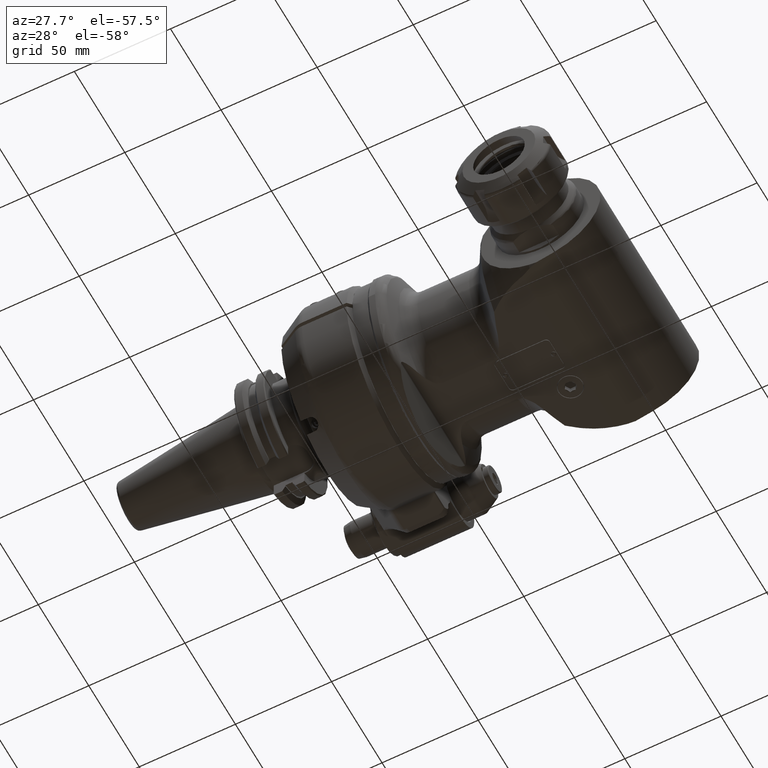
[diagram: clean part render]
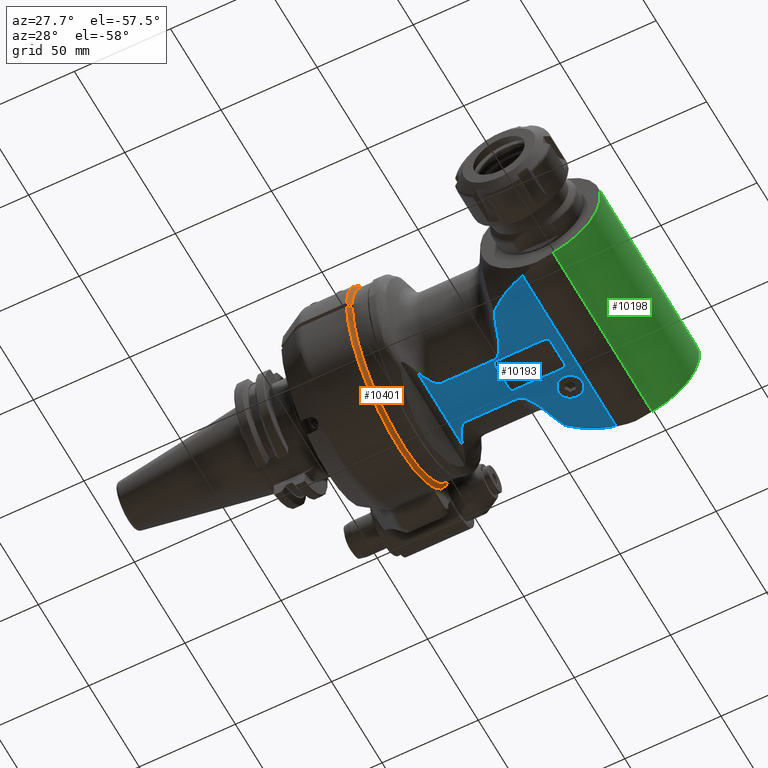
[diagram: same view with three faces highlighted in distinct colors, each labeled with its STEP entity id]
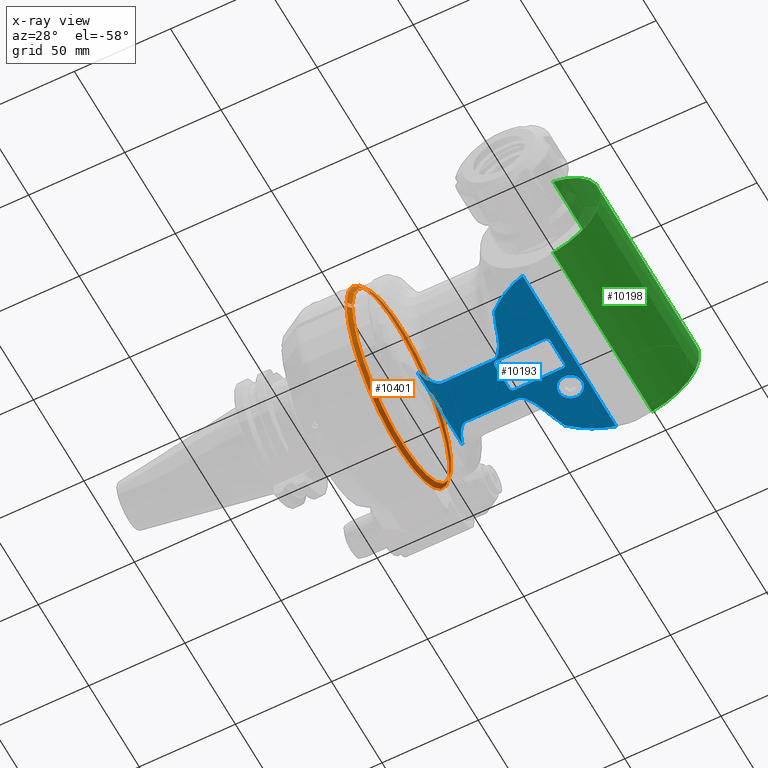
[diagram: x-ray of the same camera — body ghosted, the three highlighted faces saturated]
A machine part, auxiliary view with three faces highlighted in distinct colors.
The next image is the same camera in x-ray (body ghosted, the three faces saturated) — at least one of them is partly hidden behind the body in this view.
Their STEP definitions:

[orange] entity #10401 — the highlighted conical surface has half-angle 45 deg.
#100=CONICAL_SURFACE('',#11174,50.,0.785398163397448);
#259=(
BOUNDED_CURVE()
B_SPLINE_CURVE(2,(#21106,#21107,#21108),.UNSPECIFIED.,.F.,.F.)
B_SPLINE_CURVE_WITH_KNOTS((3,3),(-0.564591459525085,-0.191486343836374),
 .UNSPECIFIED.)
CURVE()
GEOMETRIC_REPRESENTATION_ITEM()
RATIONAL_B_SPLINE_CURVE((1.00850972307627,1.00599717540352,1.00308912932))
REPRESENTATION_ITEM('')
);
#260=(
BOUNDED_CURVE()
B_SPLINE_CURVE(2,(#21111,#21112,#21113),.UNSPECIFIED.,.F.,.F.)
B_SPLINE_CURVE_WITH_KNOTS((3,3),(-5.67826879781681,-5.3051636821038),
 .UNSPECIFIED.)
CURVE()
GEOMETRIC_REPRESENTATION_ITEM()
RATIONAL_B_SPLINE_CURVE((1.00308912932,1.00599717540371,1.00850972307659))
REPRESENTATION_ITEM('')
);
#2606=FACE_OUTER_BOUND('',#3199,.T.);
#3199=EDGE_LOOP('',(#8242,#8243,#8244,#8245));
#3725=CIRCLE('',#11169,51.);
#3730=CIRCLE('',#11175,49.);
#4573=VERTEX_POINT('',#21035);
#4574=VERTEX_POINT('',#21036);
#4580=VERTEX_POINT('',#21105);
#4581=VERTEX_POINT('',#21109);
#5881=EDGE_CURVE('',#4573,#4574,#3725,.T.);
#5891=EDGE_CURVE('',#4574,#4580,#259,.T.);
#5892=EDGE_CURVE('',#4581,#4580,#3730,.T.);
#5893=EDGE_CURVE('',#4581,#4573,#260,.T.);
#8242=ORIENTED_EDGE('',*,*,#5881,.T.);
#8243=ORIENTED_EDGE('',*,*,#5891,.T.);
#8244=ORIENTED_EDGE('',*,*,#5892,.F.);
#8245=ORIENTED_EDGE('',*,*,#5893,.T.);
#10401=ADVANCED_FACE('',(#2606),#100,.T.);
#11169=AXIS2_PLACEMENT_3D('',#21037,#12905,#12906);
#11174=AXIS2_PLACEMENT_3D('',#21104,#12917,#12918);
#11175=AXIS2_PLACEMENT_3D('',#21110,#12919,#12920);
#12905=DIRECTION('center_axis',(1.,0.,0.));
#12906=DIRECTION('ref_axis',(0.,1.,0.));
#12917=DIRECTION('center_axis',(-1.,0.,0.));
#12918=DIRECTION('ref_axis',(0.,1.,0.));
#12919=DIRECTION('center_axis',(1.,0.,0.));
#12920=DIRECTION('ref_axis',(0.,1.,0.));
#21035=CARTESIAN_POINT('',(-14.,-50.9779364039,-1.5));
#21036=CARTESIAN_POINT('',(-14.,-50.9779364039,1.5));
#21037=CARTESIAN_POINT('Origin',(-14.,0.,0.));
#21104=CARTESIAN_POINT('Origin',(-13.,0.,0.));
#21105=CARTESIAN_POINT('',(-12.,-48.97703543499,1.5));
#21106=CARTESIAN_POINT('Ctrl Pts',(-14.0000000000021,-50.9779364038979,
1.5));
#21107=CARTESIAN_POINT('Ctrl Pts',(-12.9799819768498,-49.9574769100383,
1.5));
#21108=CARTESIAN_POINT('Ctrl Pts',(-12.0000000000021,-48.9770354349879,
1.5));
#21109=CARTESIAN_POINT('',(-12.,-48.97703543499,-1.5));
#21110=CARTESIAN_POINT('Origin',(-12.,0.,0.));
#21111=CARTESIAN_POINT('Ctrl Pts',(-12.0000000000021,-48.9770354349879,
-1.5));
#21112=CARTESIAN_POINT('Ctrl Pts',(-12.9799819769135,-49.957476910102,-1.5));
#21113=CARTESIAN_POINT('Ctrl Pts',(-14.0000000001347,-50.9779364040305,
-1.5));

[blue] entity #10193 — the highlighted planar face has unit normal (0, -0, 1).
#188=(
BOUNDED_CURVE()
B_SPLINE_CURVE(2,(#14568,#14569,#14570),.UNSPECIFIED.,.F.,.F.)
B_SPLINE_CURVE_WITH_KNOTS((3,3),(7.08911489733056,7.12726137798204),
 .UNSPECIFIED.)
CURVE()
GEOMETRIC_REPRESENTATION_ITEM()
RATIONAL_B_SPLINE_CURVE((1.00178307346386,1.00172035308995,1.00165690609115))
REPRESENTATION_ITEM('')
);
#189=(
BOUNDED_CURVE()
B_SPLINE_CURVE(2,(#14572,#14573,#14574),.UNSPECIFIED.,.F.,.F.)
B_SPLINE_CURVE_WITH_KNOTS((3,3),(6.97116885366147,7.34857464648098),
 .UNSPECIFIED.)
CURVE()
GEOMETRIC_REPRESENTATION_ITEM()
RATIONAL_B_SPLINE_CURVE((1.00508700912538,1.00324096807951,1.00118013506341))
REPRESENTATION_ITEM('')
);
#190=(
BOUNDED_CURVE()
B_SPLINE_CURVE(2,(#14576,#14577,#14578),.UNSPECIFIED.,.F.,.F.)
B_SPLINE_CURVE_WITH_KNOTS((3,3),(15.8614960635496,16.1172685456662),
 .UNSPECIFIED.)
CURVE()
GEOMETRIC_REPRESENTATION_ITEM()
RATIONAL_B_SPLINE_CURVE((1.0472328344403,1.03682349322385,1.0260661612267))
REPRESENTATION_ITEM('')
);
#191=(
BOUNDED_CURVE()
B_SPLINE_CURVE(2,(#14580,#14581,#14582),.UNSPECIFIED.,.F.,.F.)
B_SPLINE_CURVE_WITH_KNOTS((3,3),(13.7580701823862,14.0725444893182),
 .UNSPECIFIED.)
CURVE()
GEOMETRIC_REPRESENTATION_ITEM()
RATIONAL_B_SPLINE_CURVE((1.08930267114987,1.07525245584212,1.060513279224))
REPRESENTATION_ITEM('')
);
#192=(
BOUNDED_CURVE()
B_SPLINE_CURVE(2,(#14584,#14585,#14586),.UNSPECIFIED.,.F.,.F.)
B_SPLINE_CURVE_WITH_KNOTS((3,3),(12.4793134982346,12.9108760293602),
 .UNSPECIFIED.)
CURVE()
GEOMETRIC_REPRESENTATION_ITEM()
RATIONAL_B_SPLINE_CURVE((1.15148416291539,1.1317976973806,1.1105684633714))
REPRESENTATION_ITEM('')
);
#193=(
BOUNDED_CURVE()
B_SPLINE_CURVE(2,(#14588,#14589,#14590),.UNSPECIFIED.,.F.,.F.)
B_SPLINE_CURVE_WITH_KNOTS((3,3),(12.3175529035878,13.9654344153438),
 .UNSPECIFIED.)
CURVE()
GEOMETRIC_REPRESENTATION_ITEM()
RATIONAL_B_SPLINE_CURVE((1.61717422063226,1.55028507239193,1.45445248874682))
REPRESENTATION_ITEM('')
);
#194=(
BOUNDED_CURVE()
B_SPLINE_CURVE(2,(#14602,#14603,#14604),.UNSPECIFIED.,.F.,.F.)
B_SPLINE_CURVE_WITH_KNOTS((3,3),(1.07864842279424,1.10590893853555),
 .UNSPECIFIED.)
CURVE()
GEOMETRIC_REPRESENTATION_ITEM()
RATIONAL_B_SPLINE_CURVE((1.11342126184132,1.11460476665536,1.11577564847921))
REPRESENTATION_ITEM('')
);
#195=(
BOUNDED_CURVE()
B_SPLINE_CURVE(2,(#14608,#14609,#14610),.UNSPECIFIED.,.F.,.F.)
B_SPLINE_CURVE_WITH_KNOTS((3,3),(6.16316429878643,6.19042481452876),
 .UNSPECIFIED.)
CURVE()
GEOMETRIC_REPRESENTATION_ITEM()
RATIONAL_B_SPLINE_CURVE((1.11577564839549,1.11460476657161,1.11342126175755))
REPRESENTATION_ITEM('')
);
#196=(
BOUNDED_CURVE()
B_SPLINE_CURVE(2,(#14638,#14639,#14640),.UNSPECIFIED.,.F.,.F.)
B_SPLINE_CURVE_WITH_KNOTS((3,3),(3.05306408997852,4.70094560172792),
 .UNSPECIFIED.)
CURVE()
GEOMETRIC_REPRESENTATION_ITEM()
RATIONAL_B_SPLINE_CURVE((1.45445248874682,1.55028507239154,1.61717422063172))
REPRESENTATION_ITEM('')
);
#197=(
BOUNDED_CURVE()
B_SPLINE_CURVE(2,(#14642,#14643,#14644),.UNSPECIFIED.,.F.,.F.)
B_SPLINE_CURVE_WITH_KNOTS((3,3),(1.03386127366924,1.46542381090931),
 .UNSPECIFIED.)
CURVE()
GEOMETRIC_REPRESENTATION_ITEM()
RATIONAL_B_SPLINE_CURVE((1.11056846276984,1.13179769710168,1.15148416291538))
REPRESENTATION_ITEM('')
);
#198=(
BOUNDED_CURVE()
B_SPLINE_CURVE(2,(#14646,#14647,#14648),.UNSPECIFIED.,.F.,.F.)
B_SPLINE_CURVE_WITH_KNOTS((3,3),(0.617239286247803,0.931713588283783),
 .UNSPECIFIED.)
CURVE()
GEOMETRIC_REPRESENTATION_ITEM()
RATIONAL_B_SPLINE_CURVE((1.06051327915536,1.0752524555456,1.08930267064694))
REPRESENTATION_ITEM('')
);
#199=(
BOUNDED_CURVE()
B_SPLINE_CURVE(2,(#14650,#14651,#14652),.UNSPECIFIED.,.F.,.F.)
B_SPLINE_CURVE_WITH_KNOTS((3,3),(0.304034443940658,0.559808847277747),
 .UNSPECIFIED.)
CURVE()
GEOMETRIC_REPRESENTATION_ITEM()
RATIONAL_B_SPLINE_CURVE((1.02606599956354,1.03682341497864,1.04723283438518))
REPRESENTATION_ITEM('')
);
#200=(
BOUNDED_CURVE()
B_SPLINE_CURVE(2,(#14664,#14665,#14666),.UNSPECIFIED.,.F.,.F.)
B_SPLINE_CURVE_WITH_KNOTS((3,3),(0.465558125537572,0.50370461246125),
 .UNSPECIFIED.)
CURVE()
GEOMETRIC_REPRESENTATION_ITEM()
RATIONAL_B_SPLINE_CURVE((1.001656906169,1.00172035317799,1.00178307356184))
REPRESENTATION_ITEM('')
);
#365=B_SPLINE_CURVE_WITH_KNOTS('',3,(#14551,#14552,#14553,#14554,#14555,
#14556,#14557,#14558,#14559,#14560,#14561,#14562),.UNSPECIFIED.,.F.,.F.,
(4,2,2,2,2,4),(2.00452721916998,2.03937028793508,2.62178393530066,3.04132583117103,
3.16533702725146,3.26256449606921),.UNSPECIFIED.);
#366=B_SPLINE_CURVE_WITH_KNOTS('',3,(#14591,#14592,#14593,#14594,#14595,
#14596,#14597,#14598,#14599,#14600),.UNSPECIFIED.,.F.,.F.,(4,2,2,2,4),(2.32747365321976,
2.8780740864616,3.34957183106961,3.49005950207602,3.59989156653282),
 .UNSPECIFIED.);
#367=B_SPLINE_CURVE_WITH_KNOTS('',3,(#14612,#14613,#14614,#14615,#14616,
#14617,#14618,#14619,#14620,#14621,#14622,#14623),.UNSPECIFIED.,.F.,.F.,
(4,2,2,2,2,4),(-3.26256449606921,-3.16533702725146,-3.04132583117103,-2.62178393530066,
-2.03937028793508,-2.00452721916819),.UNSPECIFIED.);
#368=B_SPLINE_CURVE_WITH_KNOTS('',3,(#14627,#14628,#14629,#14630,#14631,
#14632,#14633,#14634,#14635,#14636),.UNSPECIFIED.,.F.,.F.,(4,2,2,2,4),(3.59989156653282,
3.7097236309896,3.85021130199603,4.32170904660403,4.87230947985028),
 .UNSPECIFIED.);
#369=B_SPLINE_CURVE_WITH_KNOTS('',3,(#14654,#14655,#14656,#14657,#14658,
#14659,#14660,#14661,#14662,#14663),.UNSPECIFIED.,.F.,.F.,(4,3,3,4),(4.06829624531636E-6,
0.3333333333333,0.6666666666667,1.),.UNSPECIFIED.);
#606=FACE_BOUND('',#2957,.T.);
#607=FACE_BOUND('',#2958,.T.);
#712=LINE('',#14531,#1494);
#714=LINE('',#14566,#1496);
#715=LINE('',#14606,#1497);
#716=LINE('',#14625,#1498);
#717=LINE('',#14671,#1499);
#718=LINE('',#14675,#1500);
#719=LINE('',#14679,#1501);
#720=LINE('',#14683,#1502);
#1494=VECTOR('',#11821,26.67897826015);
#1496=VECTOR('',#11831,92.6347024427);
#1497=VECTOR('',#11832,45.02224602415);
#1498=VECTOR('',#11833,26.67897826015);
#1499=VECTOR('',#11836,25.);
#1500=VECTOR('',#11839,14.);
#1501=VECTOR('',#11842,25.);
#1502=VECTOR('',#11845,14.);
#2398=FACE_OUTER_BOUND('',#2956,.T.);
#2956=EDGE_LOOP('',(#6766,#6767,#6768,#6769,#6770,#6771,#6772,#6773,#6774,
#6775,#6776,#6777,#6778,#6779,#6780,#6781,#6782,#6783,#6784,#6785,#6786,
#6787));
#2957=EDGE_LOOP('',(#6788));
#2958=EDGE_LOOP('',(#6789,#6790,#6791,#6792,#6793,#6794,#6795,#6796));
#3582=CIRCLE('',#10820,6.25);
#3583=CIRCLE('',#10821,2.);
#3584=CIRCLE('',#10822,2.);
#3585=CIRCLE('',#10823,2.);
#3586=CIRCLE('',#10824,2.);
#4001=VERTEX_POINT('',#14527);
#4003=VERTEX_POINT('',#14530);
#4006=VERTEX_POINT('',#14549);
#4007=VERTEX_POINT('',#14564);
#4008=VERTEX_POINT('',#14565);
#4009=VERTEX_POINT('',#14567);
#4010=VERTEX_POINT('',#14571);
#4011=VERTEX_POINT('',#14575);
#4012=VERTEX_POINT('',#14579);
#4013=VERTEX_POINT('',#14583);
#4014=VERTEX_POINT('',#14587);
#4015=VERTEX_POINT('',#14601);
#4016=VERTEX_POINT('',#14605);
#4017=VERTEX_POINT('',#14607);
#4018=VERTEX_POINT('',#14611);
#4019=VERTEX_POINT('',#14624);
#4020=VERTEX_POINT('',#14626);
#4021=VERTEX_POINT('',#14637);
#4022=VERTEX_POINT('',#14641);
#4023=VERTEX_POINT('',#14645);
#4024=VERTEX_POINT('',#14649);
#4025=VERTEX_POINT('',#14653);
#4026=VERTEX_POINT('',#14667);
#4027=VERTEX_POINT('',#14669);
#4028=VERTEX_POINT('',#14670);
#4029=VERTEX_POINT('',#14672);
#4030=VERTEX_POINT('',#14674);
#4031=VERTEX_POINT('',#14676);
#4032=VERTEX_POINT('',#14678);
#4033=VERTEX_POINT('',#14680);
#4034=VERTEX_POINT('',#14682);
#5137=EDGE_CURVE('',#4001,#4003,#712,.T.);
#5142=EDGE_CURVE('',#4006,#4001,#365,.T.);
#5143=EDGE_CURVE('',#4007,#4008,#714,.T.);
#5144=EDGE_CURVE('',#4009,#4007,#188,.T.);
#5145=EDGE_CURVE('',#4010,#4009,#189,.T.);
#5146=EDGE_CURVE('',#4011,#4010,#190,.T.);
#5147=EDGE_CURVE('',#4012,#4011,#191,.T.);
#5148=EDGE_CURVE('',#4013,#4012,#192,.T.);
#5149=EDGE_CURVE('',#4014,#4013,#193,.T.);
#5150=EDGE_CURVE('',#4014,#4003,#366,.T.);
#5151=EDGE_CURVE('',#4015,#4006,#194,.T.);
#5152=EDGE_CURVE('',#4016,#4015,#715,.T.);
#5153=EDGE_CURVE('',#4017,#4016,#195,.T.);
#5154=EDGE_CURVE('',#4018,#4017,#367,.T.);
#5155=EDGE_CURVE('',#4019,#4018,#716,.T.);
#5156=EDGE_CURVE('',#4019,#4020,#368,.T.);
#5157=EDGE_CURVE('',#4021,#4020,#196,.T.);
#5158=EDGE_CURVE('',#4022,#4021,#197,.T.);
#5159=EDGE_CURVE('',#4023,#4022,#198,.T.);
#5160=EDGE_CURVE('',#4024,#4023,#199,.T.);
#5161=EDGE_CURVE('',#4025,#4024,#369,.T.);
#5162=EDGE_CURVE('',#4008,#4025,#200,.T.);
#5163=EDGE_CURVE('',#4026,#4026,#3582,.T.);
#5164=EDGE_CURVE('',#4027,#4028,#717,.T.);
#5165=EDGE_CURVE('',#4028,#4029,#3583,.T.);
#5166=EDGE_CURVE('',#4029,#4030,#718,.T.);
#5167=EDGE_CURVE('',#4030,#4031,#3584,.T.);
#5168=EDGE_CURVE('',#4031,#4032,#719,.T.);
#5169=EDGE_CURVE('',#4032,#4033,#3585,.T.);
#5170=EDGE_CURVE('',#4033,#4034,#720,.T.);
#5171=EDGE_CURVE('',#4034,#4027,#3586,.T.);
#6766=ORIENTED_EDGE('',*,*,#5143,.F.);
#6767=ORIENTED_EDGE('',*,*,#5144,.F.);
#6768=ORIENTED_EDGE('',*,*,#5145,.F.);
#6769=ORIENTED_EDGE('',*,*,#5146,.F.);
#6770=ORIENTED_EDGE('',*,*,#5147,.F.);
#6771=ORIENTED_EDGE('',*,*,#5148,.F.);
#6772=ORIENTED_EDGE('',*,*,#5149,.F.);
#6773=ORIENTED_EDGE('',*,*,#5150,.T.);
#6774=ORIENTED_EDGE('',*,*,#5137,.F.);
#6775=ORIENTED_EDGE('',*,*,#5142,.F.);
#6776=ORIENTED_EDGE('',*,*,#5151,.F.);
#6777=ORIENTED_EDGE('',*,*,#5152,.F.);
#6778=ORIENTED_EDGE('',*,*,#5153,.F.);
#6779=ORIENTED_EDGE('',*,*,#5154,.F.);
#6780=ORIENTED_EDGE('',*,*,#5155,.F.);
#6781=ORIENTED_EDGE('',*,*,#5156,.T.);
#6782=ORIENTED_EDGE('',*,*,#5157,.F.);
#6783=ORIENTED_EDGE('',*,*,#5158,.F.);
#6784=ORIENTED_EDGE('',*,*,#5159,.F.);
#6785=ORIENTED_EDGE('',*,*,#5160,.F.);
#6786=ORIENTED_EDGE('',*,*,#5161,.F.);
#6787=ORIENTED_EDGE('',*,*,#5162,.F.);
#6788=ORIENTED_EDGE('',*,*,#5163,.T.);
#6789=ORIENTED_EDGE('',*,*,#5164,.T.);
#6790=ORIENTED_EDGE('',*,*,#5165,.T.);
#6791=ORIENTED_EDGE('',*,*,#5166,.T.);
#6792=ORIENTED_EDGE('',*,*,#5167,.T.);
#6793=ORIENTED_EDGE('',*,*,#5168,.T.);
#6794=ORIENTED_EDGE('',*,*,#5169,.T.);
#6795=ORIENTED_EDGE('',*,*,#5170,.T.);
#6796=ORIENTED_EDGE('',*,*,#5171,.T.);
#9928=PLANE('',#10819);
#10193=ADVANCED_FACE('',(#2398,#606,#607),#9928,.F.);
#10819=AXIS2_PLACEMENT_3D('',#14563,#11829,#11830);
#10820=AXIS2_PLACEMENT_3D('',#14668,#11834,#11835);
#10821=AXIS2_PLACEMENT_3D('',#14673,#11837,#11838);
#10822=AXIS2_PLACEMENT_3D('',#14677,#11840,#11841);
#10823=AXIS2_PLACEMENT_3D('',#14681,#11843,#11844);
#10824=AXIS2_PLACEMENT_3D('',#14684,#11846,#11847);
#11821=DIRECTION('',(1.,0.,0.));
#11829=DIRECTION('center_axis',(0.,0.,1.));
#11830=DIRECTION('ref_axis',(-1.,0.,0.));
#11831=DIRECTION('',(0.,1.,0.));
#11832=DIRECTION('',(0.,-1.,0.));
#11833=DIRECTION('',(-1.,0.,0.));
#11834=DIRECTION('center_axis',(0.,0.,1.));
#11835=DIRECTION('ref_axis',(0.,-1.,0.));
#11836=DIRECTION('',(1.,0.,0.));
#11837=DIRECTION('center_axis',(0.,0.,1.));
#11838=DIRECTION('ref_axis',(8.526512829121E-14,-1.,0.));
#11839=DIRECTION('',(0.,1.,0.));
#11840=DIRECTION('center_axis',(0.,0.,1.));
#11841=DIRECTION('ref_axis',(1.,0.,0.));
#11842=DIRECTION('',(-1.,0.,0.));
#11843=DIRECTION('center_axis',(0.,0.,1.));
#11844=DIRECTION('ref_axis',(0.,1.,0.));
#11845=DIRECTION('',(0.,-1.,0.));
#11846=DIRECTION('center_axis',(0.,0.,1.));
#11847=DIRECTION('ref_axis',(-1.,0.,0.));
#14527=CARTESIAN_POINT('',(207.1879662404,-11.8321595662,-34.));
#14530=CARTESIAN_POINT('',(233.8669445005,-11.8321595662,-34.));
#14531=CARTESIAN_POINT('',(207.1879662404,-11.8321595662,-34.));
#14549=CARTESIAN_POINT('',(199.9375039441,-22.22403069257,-34.));
#14551=CARTESIAN_POINT('Ctrl Pts',(199.937503944108,-22.224030692572,-34.));
#14552=CARTESIAN_POINT('Ctrl Pts',(199.968608168859,-22.1021166285086,-34.));
#14553=CARTESIAN_POINT('Ctrl Pts',(200.000606743343,-21.9803869181451,-34.));
#14554=CARTESIAN_POINT('Ctrl Pts',(200.582986316568,-19.8279709388041,-34.));
#14555=CARTESIAN_POINT('Ctrl Pts',(201.374850143006,-17.860432723607,-34.));
#14556=CARTESIAN_POINT('Ctrl Pts',(203.008613998233,-14.9474573060366,-34.));
#14557=CARTESIAN_POINT('Ctrl Pts',(203.953201733516,-13.5603738735786,-34.));
#14558=CARTESIAN_POINT('Ctrl Pts',(205.372427555173,-12.4340633292095,-34.));
#14559=CARTESIAN_POINT('Ctrl Pts',(205.793568991128,-12.1719558722867,-34.));
#14560=CARTESIAN_POINT('Ctrl Pts',(206.48271510493,-11.9094141530462,-34.));
#14561=CARTESIAN_POINT('Ctrl Pts',(206.863874677674,-11.8321595661992,-34.));
#14562=CARTESIAN_POINT('Ctrl Pts',(207.1879662404,-11.8321595661992,-34.));
#14563=CARTESIAN_POINT('Origin',(234.026154,-60.0000024,-34.));
#14564=CARTESIAN_POINT('',(267.2074379648,-46.31735122135,-34.));
#14565=CARTESIAN_POINT('',(267.2074379648,46.31735122135,-34.));
#14566=CARTESIAN_POINT('',(267.2074379648,-46.31735122135,-34.));
#14567=CARTESIAN_POINT('',(266.75924942072,-46.2192805022702,-34.0000000002501));
#14568=CARTESIAN_POINT('Ctrl Pts',(266.759249420658,-46.219280502552,-34.));
#14569=CARTESIAN_POINT('Ctrl Pts',(266.983106196659,-46.2682821164908,-34.));
#14570=CARTESIAN_POINT('Ctrl Pts',(267.207437964799,-46.3173512213511,-34.));
#14571=CARTESIAN_POINT('',(261.759249421153,-44.5451818399027,-34.0000000002716));
#14572=CARTESIAN_POINT('Ctrl Pts',(261.759249421063,-44.5451818401711,-34.));
#14573=CARTESIAN_POINT('Ctrl Pts',(264.213138348914,-45.3723433847958,-34.));
#14574=CARTESIAN_POINT('Ctrl Pts',(266.759249420699,-46.2192805023322,-34.));
#14575=CARTESIAN_POINT('',(256.759249414489,-42.2329602400363,-34.0000000018601));
#14576=CARTESIAN_POINT('Ctrl Pts',(256.759249413712,-42.2329602416999,-34.));
#14577=CARTESIAN_POINT('Ctrl Pts',(259.192636398675,-43.3699887108055,-34.));
#14578=CARTESIAN_POINT('Ctrl Pts',(261.759249421109,-44.5451818399988,-34.));
#14579=CARTESIAN_POINT('',(251.759249368103,-39.194833348944,-34.0000000152505));
#14580=CARTESIAN_POINT('Ctrl Pts',(251.759249360451,-39.1948333613557,-34.));
#14581=CARTESIAN_POINT('Ctrl Pts',(254.165972670013,-40.6805170993655,-34.));
#14582=CARTESIAN_POINT('Ctrl Pts',(256.75924941407,-42.2329602407372,-34.));
#14583=CARTESIAN_POINT('',(246.4733509227,-35.05497133849,-34.));
#14584=CARTESIAN_POINT('Ctrl Pts',(246.473350922697,-35.0549713384935,-34.));
#14585=CARTESIAN_POINT('Ctrl Pts',(248.968940225777,-37.0621845108523,-34.));
#14586=CARTESIAN_POINT('Ctrl Pts',(251.759249363715,-39.1948333546996,-34.));
#14587=CARTESIAN_POINT('',(241.6611731346,-22.00568108462,-34.));
#14588=CARTESIAN_POINT('Ctrl Pts',(241.661173134573,-22.0056810847525,-34.));
#14589=CARTESIAN_POINT('Ctrl Pts',(243.517009779102,-27.9215777812984,-34.));
#14590=CARTESIAN_POINT('Ctrl Pts',(246.473350922663,-35.0549713385052,-34.));
#14591=CARTESIAN_POINT('Ctrl Pts',(241.661173134551,-22.0056810846355,-34.));
#14592=CARTESIAN_POINT('Ctrl Pts',(241.066668194054,-20.110562878016,-34.));
#14593=CARTESIAN_POINT('Ctrl Pts',(240.279862271904,-18.2918418451213,-34.));
#14594=CARTESIAN_POINT('Ctrl Pts',(238.591879803817,-15.3323954779161,-34.));
#14595=CARTESIAN_POINT('Ctrl Pts',(237.519070508123,-13.7812532581952,-34.));
#14596=CARTESIAN_POINT('Ctrl Pts',(235.920003028459,-12.5146101157905,-34.));
#14597=CARTESIAN_POINT('Ctrl Pts',(235.443066222336,-12.2174235510846,-34.));
#14598=CARTESIAN_POINT('Ctrl Pts',(234.663546023659,-11.9198161783188,-34.));
#14599=CARTESIAN_POINT('Ctrl Pts',(234.233051382023,-11.8321595661992,-34.));
#14600=CARTESIAN_POINT('Ctrl Pts',(233.8669445005,-11.8321595661992,-34.));
#14601=CARTESIAN_POINT('',(199.8639272009,-22.51112301207,-34.));
#14602=CARTESIAN_POINT('Ctrl Pts',(199.86392720093,-22.5111230120777,-34.));
#14603=CARTESIAN_POINT('Ctrl Pts',(199.900951665573,-22.3672985882799,-34.));
#14604=CARTESIAN_POINT('Ctrl Pts',(199.937503944114,-22.2240306925737,-34.));
#14605=CARTESIAN_POINT('',(199.8639272009,22.51112301208,-34.));
#14606=CARTESIAN_POINT('',(199.8639272009,22.51112301208,-34.));
#14607=CARTESIAN_POINT('',(199.9375039441,22.22403069259,-34.));
#14608=CARTESIAN_POINT('Ctrl Pts',(199.937503944272,22.224030691956,-34.));
#14609=CARTESIAN_POINT('Ctrl Pts',(199.900951665727,22.3672985876782,-34.));
#14610=CARTESIAN_POINT('Ctrl Pts',(199.86392720108,22.511123011492,-34.));
#14611=CARTESIAN_POINT('',(207.1879662404,11.8321595662,-34.));
#14612=CARTESIAN_POINT('Ctrl Pts',(207.1879662404,11.8321595661992,-34.));
#14613=CARTESIAN_POINT('Ctrl Pts',(206.863874677674,11.8321595661992,-34.));
#14614=CARTESIAN_POINT('Ctrl Pts',(206.48271510493,11.9094141530462,-34.));
#14615=CARTESIAN_POINT('Ctrl Pts',(205.793568991128,12.1719558722867,-34.));
#14616=CARTESIAN_POINT('Ctrl Pts',(205.372427555173,12.4340633292095,-34.));
#14617=CARTESIAN_POINT('Ctrl Pts',(203.953201733516,13.5603738735786,-34.));
#14618=CARTESIAN_POINT('Ctrl Pts',(203.008613998233,14.9474573060366,-34.));
#14619=CARTESIAN_POINT('Ctrl Pts',(201.374850143006,17.860432723607,-34.));
#14620=CARTESIAN_POINT('Ctrl Pts',(200.582986316568,19.8279709388041,-34.));
#14621=CARTESIAN_POINT('Ctrl Pts',(200.000606743342,21.9803869181513,-34.));
#14622=CARTESIAN_POINT('Ctrl Pts',(199.968608168856,22.1021166285211,-34.));
#14623=CARTESIAN_POINT('Ctrl Pts',(199.937503944103,22.2240306925908,-34.));
#14624=CARTESIAN_POINT('',(233.8669445005,11.8321595662,-34.));
#14625=CARTESIAN_POINT('',(233.8669445005,11.8321595662,-34.));
#14626=CARTESIAN_POINT('',(241.6611731346,22.00568108467,-34.));
#14627=CARTESIAN_POINT('Ctrl Pts',(233.8669445005,11.8321595661992,-34.));
#14628=CARTESIAN_POINT('Ctrl Pts',(234.233051382023,11.8321595661992,-34.));
#14629=CARTESIAN_POINT('Ctrl Pts',(234.663546023658,11.9198161783188,-34.));
#14630=CARTESIAN_POINT('Ctrl Pts',(235.443066222336,12.2174235510846,-34.));
#14631=CARTESIAN_POINT('Ctrl Pts',(235.920003028459,12.5146101157905,-34.));
#14632=CARTESIAN_POINT('Ctrl Pts',(237.519070508123,13.7812532581953,-34.));
#14633=CARTESIAN_POINT('Ctrl Pts',(238.591879803817,15.3323954779161,-34.));
#14634=CARTESIAN_POINT('Ctrl Pts',(240.279862271911,18.291841845134,-34.));
#14635=CARTESIAN_POINT('Ctrl Pts',(241.066668194067,20.1105628780451,-34.));
#14636=CARTESIAN_POINT('Ctrl Pts',(241.661173134565,22.0056810846811,-34.));
#14637=CARTESIAN_POINT('',(246.4733509227,35.05497133849,-34.));
#14638=CARTESIAN_POINT('Ctrl Pts',(246.473350922663,35.0549713385052,-34.));
#14639=CARTESIAN_POINT('Ctrl Pts',(243.517009779113,27.9215777813253,-34.));
#14640=CARTESIAN_POINT('Ctrl Pts',(241.661173134587,22.0056810847981,-34.));
#14641=CARTESIAN_POINT('',(251.759249442685,39.1948334183895,-33.9999999944178));
#14642=CARTESIAN_POINT('Ctrl Pts',(251.759249444294,39.1948334162861,-34.));
#14643=CARTESIAN_POINT('Ctrl Pts',(248.96894026175,37.0621845397854,-34.));
#14644=CARTESIAN_POINT('Ctrl Pts',(246.473350922697,35.0549713384935,-34.));
#14645=CARTESIAN_POINT('',(256.759249426142,42.2329602483583,-33.9999999992183));
#14646=CARTESIAN_POINT('Ctrl Pts',(256.759249426316,42.2329602480683,-34.));
#14647=CARTESIAN_POINT('Ctrl Pts',(254.165972721468,40.6805171302746,-34.));
#14648=CARTESIAN_POINT('Ctrl Pts',(251.759249445488,39.1948334138498,-34.));
#14649=CARTESIAN_POINT('',(261.759288970778,44.5451987472087,-33.9999953154873));
#14650=CARTESIAN_POINT('Ctrl Pts',(261.759288397033,44.5451996861775,-34.));
#14651=CARTESIAN_POINT('Ctrl Pts',(259.192654873664,43.3699973433965,-34.));
#14652=CARTESIAN_POINT('Ctrl Pts',(256.759249426468,42.2329602476606,-34.));
#14653=CARTESIAN_POINT('',(266.759249510105,46.2192797430743,-34.0000010762162));
#14654=CARTESIAN_POINT('Ctrl Pts',(266.75924975162,46.2192790170201,-34.0000021687571));
#14655=CARTESIAN_POINT('Ctrl Pts',(266.199194411101,46.0329824752043,-34.0000021773105));
#14656=CARTESIAN_POINT('Ctrl Pts',(265.640663597195,45.8468003072202,-33.9999985260179));
#14657=CARTESIAN_POINT('Ctrl Pts',(265.083625507963,45.6607085896573,-33.9999982487117));
#14658=CARTESIAN_POINT('Ctrl Pts',(264.52658062006,45.474614600838,-33.9999979714021));
#14659=CARTESIAN_POINT('Ctrl Pts',(263.971028502198,45.288611013723,-34.0000010807426));
#14660=CARTESIAN_POINT('Ctrl Pts',(263.416953538895,45.1026883322671,-34.0000018117867));
#14661=CARTESIAN_POINT('Ctrl Pts',(262.862878575592,44.9167656508112,-34.0000025428307));
#14662=CARTESIAN_POINT('Ctrl Pts',(262.310280779325,44.7309238626727,-34.0000008345819));
#14663=CARTESIAN_POINT('Ctrl Pts',(261.759328518856,44.5452078583382,-34.0000008440852));
#14664=CARTESIAN_POINT('Ctrl Pts',(267.207437964799,46.3173512213511,-34.));
#14665=CARTESIAN_POINT('Ctrl Pts',(266.983106159937,46.2682821084585,-34.));
#14666=CARTESIAN_POINT('Ctrl Pts',(266.759249347369,46.2192804865094,-34.));
#14667=CARTESIAN_POINT('',(258.563097,23.75,-34.));
#14668=CARTESIAN_POINT('Origin',(258.563097,17.5,-34.));
#14669=CARTESIAN_POINT('',(235.0630966055,-11.00000037207,-34.));
#14670=CARTESIAN_POINT('',(260.0630966055,-11.00000037207,-34.));
#14671=CARTESIAN_POINT('',(235.0630966055,-11.00000037207,-34.));
#14672=CARTESIAN_POINT('',(262.0630966055,-9.00000037207,-34.));
#14673=CARTESIAN_POINT('Origin',(260.0630966055,-9.00000037207,-34.));
#14674=CARTESIAN_POINT('',(262.0630966055,4.99999962793,-34.));
#14675=CARTESIAN_POINT('',(262.0630966055,-9.00000037207,-34.));
#14676=CARTESIAN_POINT('',(260.0630966055,6.99999962793,-34.));
#14677=CARTESIAN_POINT('Origin',(260.0630966055,4.99999962793,-34.));
#14678=CARTESIAN_POINT('',(235.0630966055,6.99999962793,-34.));
#14679=CARTESIAN_POINT('',(260.0630966055,6.99999962793,-34.));
#14680=CARTESIAN_POINT('',(233.0630966055,4.99999962793,-34.));
#14681=CARTESIAN_POINT('Origin',(235.0630966055,4.99999962793,-34.));
#14682=CARTESIAN_POINT('',(233.0630966055,-9.00000037207,-34.));
#14683=CARTESIAN_POINT('',(233.0630966055,4.99999962793,-34.));
#14684=CARTESIAN_POINT('Origin',(235.0630966055,-9.00000037207,-34.));

[green] entity #10198 — the highlighted cylindrical surface (partial cylindrical patch) has radius 31 mm, axis along (-0, 1, 0).
#722=LINE('',#14701,#1504);
#725=LINE('',#14769,#1507);
#1504=VECTOR('',#11853,98.);
#1507=VECTOR('',#11872,98.);
#2265=CYLINDRICAL_SURFACE('',#10834,31.);
#2403=FACE_OUTER_BOUND('',#2964,.T.);
#2964=EDGE_LOOP('',(#6829,#6830,#6831,#6832));
#3589=CIRCLE('',#10832,31.);
#3591=CIRCLE('',#10835,31.);
#4038=VERTEX_POINT('',#14698);
#4039=VERTEX_POINT('',#14700);
#4044=VERTEX_POINT('',#14726);
#4055=VERTEX_POINT('',#14768);
#5176=EDGE_CURVE('',#4039,#4038,#722,.T.);
#5184=EDGE_CURVE('',#4039,#4044,#3589,.T.);
#5196=EDGE_CURVE('',#4055,#4044,#725,.T.);
#5197=EDGE_CURVE('',#4055,#4038,#3591,.T.);
#6829=ORIENTED_EDGE('',*,*,#5196,.T.);
#6830=ORIENTED_EDGE('',*,*,#5184,.F.);
#6831=ORIENTED_EDGE('',*,*,#5176,.T.);
#6832=ORIENTED_EDGE('',*,*,#5197,.F.);
#10198=ADVANCED_FACE('',(#2403),#2265,.T.);
#10832=AXIS2_PLACEMENT_3D('',#14727,#11865,#11866);
#10834=AXIS2_PLACEMENT_3D('',#14767,#11870,#11871);
#10835=AXIS2_PLACEMENT_3D('',#14770,#11873,#11874);
#11853=DIRECTION('',(0.,1.,0.));
#11865=DIRECTION('center_axis',(0.,-1.,0.));
#11866=DIRECTION('ref_axis',(0.207911690816993,0.,-0.978147600733968));
#11870=DIRECTION('center_axis',(0.,1.,0.));
#11871=DIRECTION('ref_axis',(1.,0.,0.));
#11872=DIRECTION('',(0.,-1.,0.));
#11873=DIRECTION('center_axis',(0.,1.,0.));
#11874=DIRECTION('ref_axis',(0.207911690816993,0.,0.978147600733968));
#14698=CARTESIAN_POINT('',(284.5083594153,49.,-30.32257562275));
#14700=CARTESIAN_POINT('',(284.5083594153,-49.,-30.32257562275));
#14701=CARTESIAN_POINT('',(284.5083594153,-49.,-30.32257562275));
#14726=CARTESIAN_POINT('',(284.5083594153,-49.,30.32257562275));
#14727=CARTESIAN_POINT('Origin',(278.063097,-49.,0.));
#14767=CARTESIAN_POINT('Origin',(278.063097,49.,0.));
#14768=CARTESIAN_POINT('',(284.5083594153,49.,30.32257562275));
#14769=CARTESIAN_POINT('',(284.5083594153,49.,30.32257562275));
#14770=CARTESIAN_POINT('Origin',(278.063097,49.,0.));